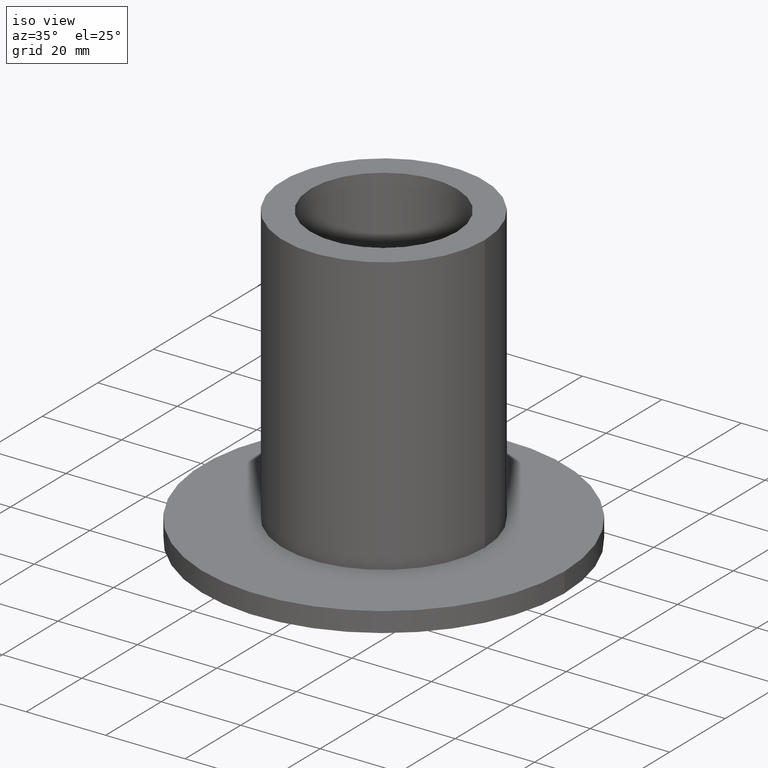
[diagram: clean part render]
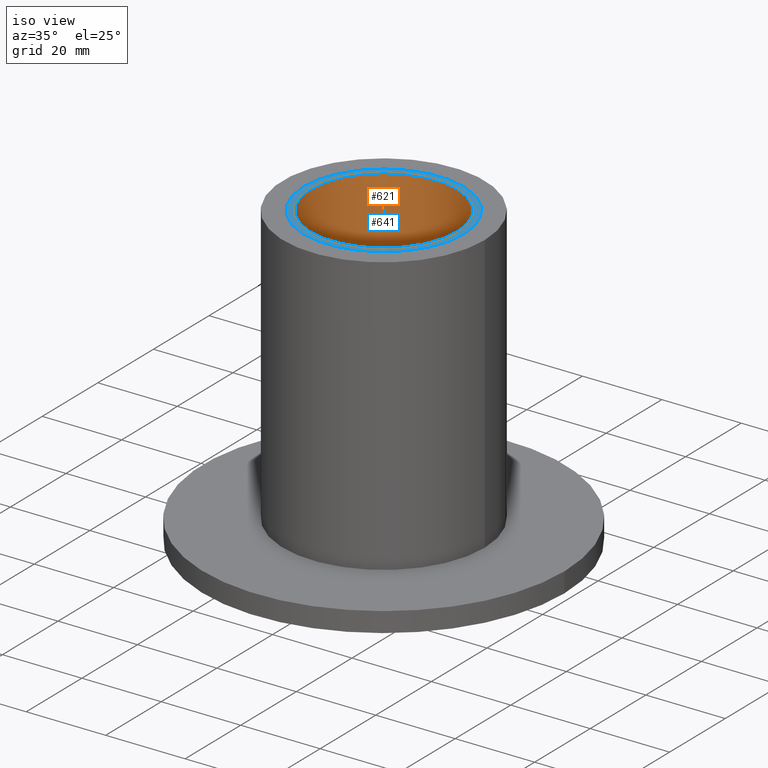
[diagram: same view with the hole feature highlighted: cylindrical wall and planar end face, labeled with their STEP entity ids]
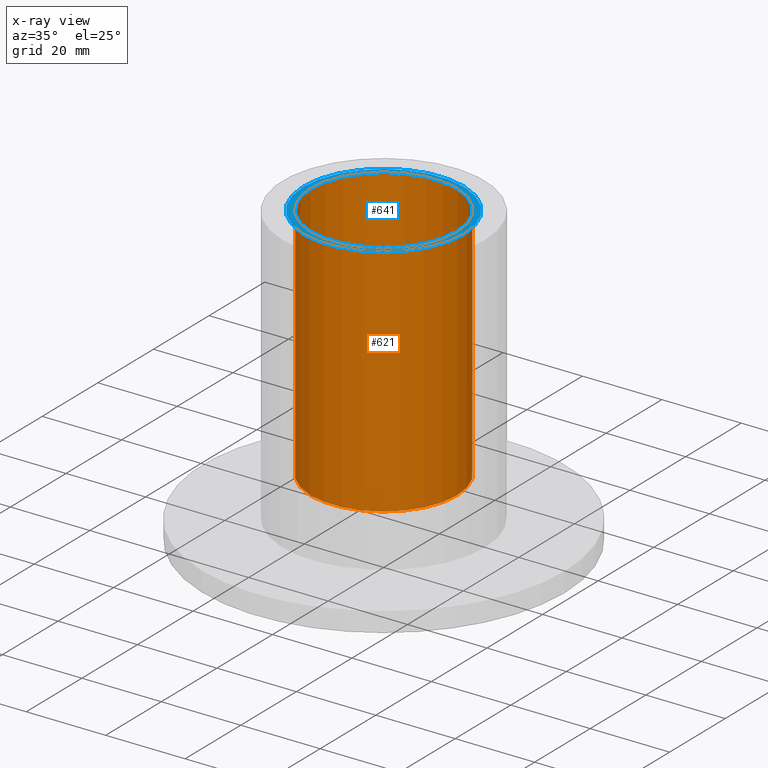
[diagram: x-ray of the same camera — body ghosted, the hole faces saturated]
A machine part, iso view. The highlighted faces form one hole feature of diameter 36.8 mm: the cylindrical wall (entity #621, orange) and its adjacent planar end face (entity #641, blue) — they share a circular edge in the B-rep.
The next image is the same camera in x-ray (body ghosted, the hole faces saturated) — the bore reads through the body.
Wall:
#594=CARTESIAN_POINT('',(0.0,0.0,10.0));
#595=DIRECTION('',(0.0,0.0,1.0));
#596=DIRECTION('',(-1.0,0.0,0.0));
#597=AXIS2_PLACEMENT_3D('',#594,#595,#596);
#598=CYLINDRICAL_SURFACE('',#597,18.400000000000002);
#599=CARTESIAN_POINT('',(18.400000000000002,2.253350E-015,70.0));
#600=VERTEX_POINT('',#599);
#601=CARTESIAN_POINT('',(0.0,0.0,70.0));
#602=DIRECTION('',(0.0,0.0,-1.0));
#603=DIRECTION('',(-1.0,0.0,0.0));
#604=AXIS2_PLACEMENT_3D('',#601,#602,#603);
#605=CIRCLE('',#604,18.400000000000002);
#606=EDGE_CURVE('',#600,#600,#605,.T.);
#607=ORIENTED_EDGE('',*,*,#606,.F.);
#608=EDGE_LOOP('',(#607));
#609=FACE_OUTER_BOUND('',#608,.T.);
#610=CARTESIAN_POINT('',(18.400000000000002,2.253350E-015,10.0));
#611=VERTEX_POINT('',#610);
#612=CARTESIAN_POINT('',(0.0,0.0,10.0));
#613=DIRECTION('',(0.0,0.0,1.0));
#614=DIRECTION('',(-1.0,0.0,0.0));
#615=AXIS2_PLACEMENT_3D('',#612,#613,#614);
#616=CIRCLE('',#615,18.400000000000002);
#617=EDGE_CURVE('',#611,#611,#616,.T.);
#618=ORIENTED_EDGE('',*,*,#617,.F.);
#619=EDGE_LOOP('',(#618));
#620=FACE_BOUND('',#619,.T.);
#621=ADVANCED_FACE('',(#609,#620),#598,.F.);
End face:
#599=CARTESIAN_POINT('',(18.400000000000002,2.253350E-015,70.0));
#600=VERTEX_POINT('',#599);
#601=CARTESIAN_POINT('',(0.0,0.0,70.0));
#602=DIRECTION('',(0.0,0.0,-1.0));
#603=DIRECTION('',(-1.0,0.0,0.0));
#604=AXIS2_PLACEMENT_3D('',#601,#602,#603);
#605=CIRCLE('',#604,18.400000000000002);
#606=EDGE_CURVE('',#600,#600,#605,.T.);
#622=CARTESIAN_POINT('',(-9.389694E-016,3.664102E-016,70.0));
#623=DIRECTION('',(0.0,0.0,1.0));
#624=DIRECTION('',(1.0,0.0,0.0));
#625=AXIS2_PLACEMENT_3D('',#622,#623,#624);
#626=PLANE('',#625);
#627=CARTESIAN_POINT('',(20.199999999999999,2.473787E-015,70.0));
#628=VERTEX_POINT('',#627);
#629=CARTESIAN_POINT('',(0.0,0.0,70.0));
#630=DIRECTION('',(0.0,0.0,-1.0));
#631=DIRECTION('',(-1.0,0.0,0.0));
#632=AXIS2_PLACEMENT_3D('',#629,#630,#631);
#633=CIRCLE('',#632,20.199999999999999);
#634=EDGE_CURVE('',#628,#628,#633,.T.);
#635=ORIENTED_EDGE('',*,*,#634,.F.);
#636=EDGE_LOOP('',(#635));
#637=FACE_OUTER_BOUND('',#636,.T.);
#638=ORIENTED_EDGE('',*,*,#606,.T.);
#639=EDGE_LOOP('',(#638));
#640=FACE_BOUND('',#639,.T.);
#641=ADVANCED_FACE('',(#637,#640),#626,.T.);